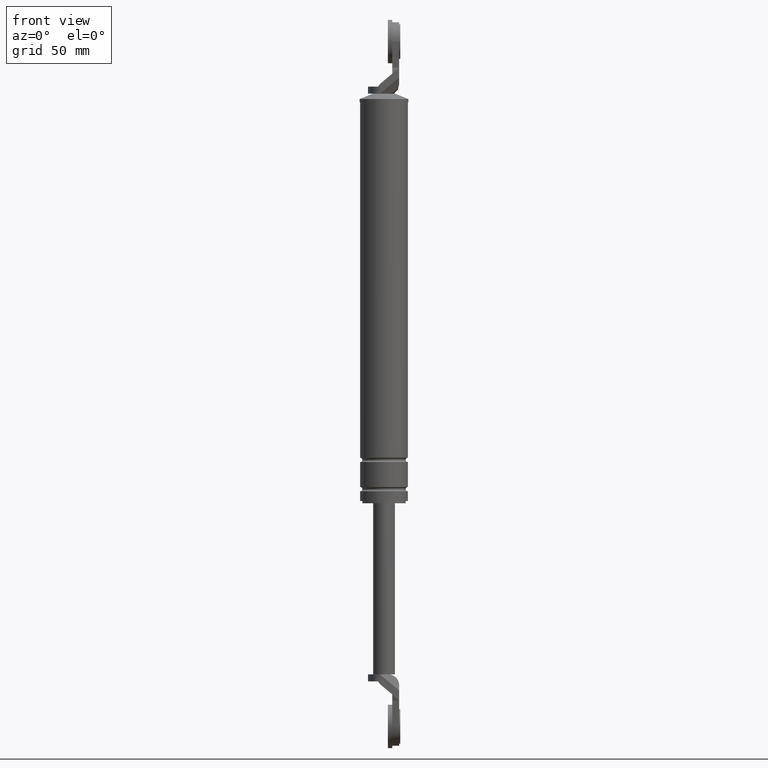
[diagram: clean part render]
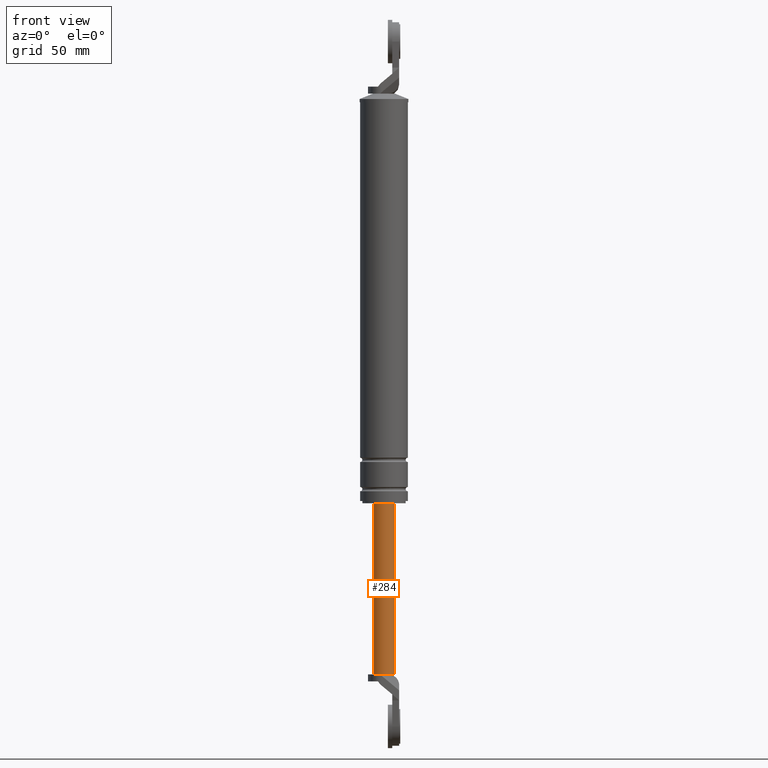
[diagram: same view with one face highlighted and labeled with its STEP entity id]
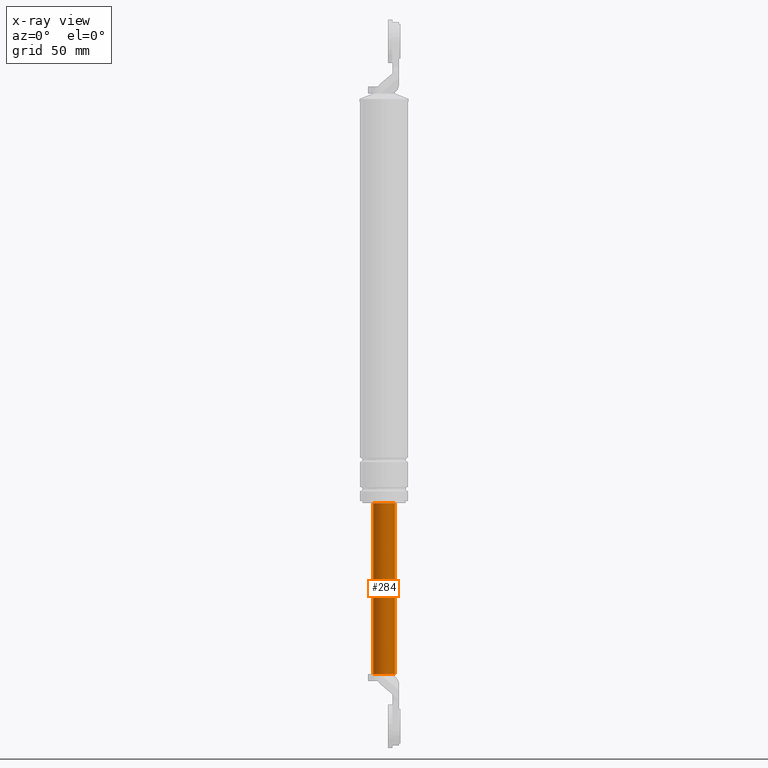
[diagram: x-ray of the same camera — body ghosted, the highlighted face saturated]
A machine part, front view. The second image highlights one B-rep face of the part: STEP entity #284.
The next image is the same camera in x-ray: the body ghosted, the highlighted face saturated — about 0% of this face is hidden behind the body in this view.
In plain terms, the highlighted cylindrical surface (edge-blend (fillet) strip) has radius 5 mm, axis along (0, 0, 1).
Its self-contained STEP definition (entity closure, byte-faithful):
#284=ADVANCED_FACE('',(#1097),#1096,.T.);
#1096=CYLINDRICAL_SURFACE('',#1755,5.00000000000E+000);
#1097=FACE_OUTER_BOUND('',#1756,.T.);
#1752=CARTESIAN_POINT('',(0.00000000000E+000,3.58204186421E-014,0.00000000000E+000));
#1753=DIRECTION('',(-0.00000000000E+000,-0.00000000000E+000,1.00000000000E+000));
#1754=DIRECTION('',(-1.00000000000E+000,1.22464679915E-016,0.00000000000E+000));
#1755=AXIS2_PLACEMENT_3D('',#1752,#1753,#1754);
#1756=EDGE_LOOP('',(#2148,#2149,#2150,#2151,#2152));
#2148=ORIENTED_EDGE('',*,*,#2338,.F.);
#2149=ORIENTED_EDGE('',*,*,#2354,.F.);
#2150=ORIENTED_EDGE('',*,*,#2350,.F.);
#2151=ORIENTED_EDGE('',*,*,#2341,.F.);
#2152=ORIENTED_EDGE('',*,*,#2355,.T.);
#2338=EDGE_CURVE('',#3550,#3549,#3557,.T.);
#2341=EDGE_CURVE('',#3570,#3563,#3577,.T.);
#2350=EDGE_CURVE('',#3563,#3633,#3634,.T.);
#2354=EDGE_CURVE('',#3633,#3550,#3658,.T.);
#2355=EDGE_CURVE('',#3570,#3549,#3664,.T.);
#3549=VERTEX_POINT('',#4397);
#3550=VERTEX_POINT('',#4398);
#3557=CIRCLE('',#4406,5.00000000000E+000);
#3563=VERTEX_POINT('',#4407);
#3570=VERTEX_POINT('',#4411);
#3577=CIRCLE('',#4419,5.00000000000E+000);
#3633=VERTEX_POINT('',#4449);
#3634=CIRCLE('',#4453,5.00000000000E+000);
#3658=(BOUNDED_CURVE() B_SPLINE_CURVE(1,(#4462,#4463),.UNSPECIFIED.,.F.,.F.) B_SPLINE_CURVE_WITH_KNOTS((2,2),(8.33333332085E-002,9.16666666563E-001),.UNSPECIFIED.) CURVE() GEOMETRIC_REPRESENTATION_ITEM() RATIONAL_B_SPLINE_CURVE((1.00000000000E+000,1.00000000000E+000)) REPRESENTATION_ITEM('') );
#3664=(BOUNDED_CURVE() B_SPLINE_CURVE(1,(#4464,#4465),.UNSPECIFIED.,.F.,.F.) B_SPLINE_CURVE_WITH_KNOTS((2,2),(8.33333333333E-002,9.16666666667E-001),.UNSPECIFIED.) CURVE() GEOMETRIC_REPRESENTATION_ITEM() RATIONAL_B_SPLINE_CURVE((7.50000000000E-001,7.50000000000E-001)) REPRESENTATION_ITEM('') );
#4397=CARTESIAN_POINT('',(5.00000000000E+000,3.58204186421E-014,-1.00000015000E+002));
#4398=CARTESIAN_POINT('',(-5.00000000000E+000,3.58231962612E-014,-1.00000015000E+002));
#4403=CARTESIAN_POINT('',(0.00000000000E+000,3.58204186421E-014,-1.00000015000E+002));
#4404=DIRECTION('',(0.00000000000E+000,0.00000000000E+000,1.00000000000E+000));
#4405=DIRECTION('',(1.00000000000E+000,-1.22460635382E-016,0.00000000000E+000));
#4406=AXIS2_PLACEMENT_3D('',#4403,#4404,#4405);
#4407=CARTESIAN_POINT('',(2.00000000000E+000,-4.58257569496E+000,-1.79000015000E+002));
#4411=CARTESIAN_POINT('',(5.00000000000E+000,2.22686622211E-006,-1.79000015000E+002));
#4416=CARTESIAN_POINT('',(0.00000000000E+000,3.58204186421E-014,-1.79000015000E+002));
#4417=DIRECTION('',(0.00000000000E+000,0.00000000000E+000,-1.00000000000E+000));
#4418=DIRECTION('',(4.00000000000E-001,9.16515138991E-001,0.00000000000E+000));
#4419=AXIS2_PLACEMENT_3D('',#4416,#4417,#4418);
#4449=CARTESIAN_POINT('',(-5.00000000000E+000,-1.92829149747E-008,-1.79000015000E+002));
#4450=CARTESIAN_POINT('',(0.00000000000E+000,3.58204186421E-014,-1.79000015000E+002));
#4451=DIRECTION('',(0.00000000000E+000,0.00000000000E+000,-1.00000000000E+000));
#4452=DIRECTION('',(1.00000000000E+000,-0.00000000000E+000,-0.00000000000E+000));
#4453=AXIS2_PLACEMENT_3D('',#4450,#4451,#4452);
#4462=CARTESIAN_POINT('',(-5.00000000000E+000,3.64327420417E-014,-1.79000015012E+002));
#4463=CARTESIAN_POINT('',(-5.00000000000E+000,3.64327420417E-014,-1.00000015010E+002));
#4464=CARTESIAN_POINT('',(5.00000000000E+000,3.55271367880E-014,-1.79000015000E+002));
#4465=CARTESIAN_POINT('',(5.00000000000E+000,3.55271367880E-014,-1.00000015000E+002));